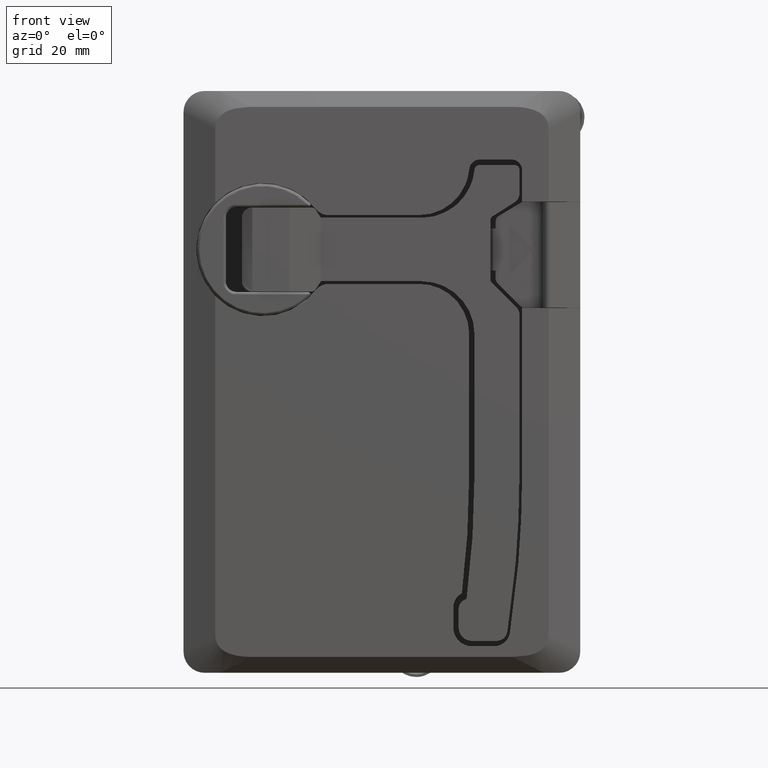
[diagram: clean part render]
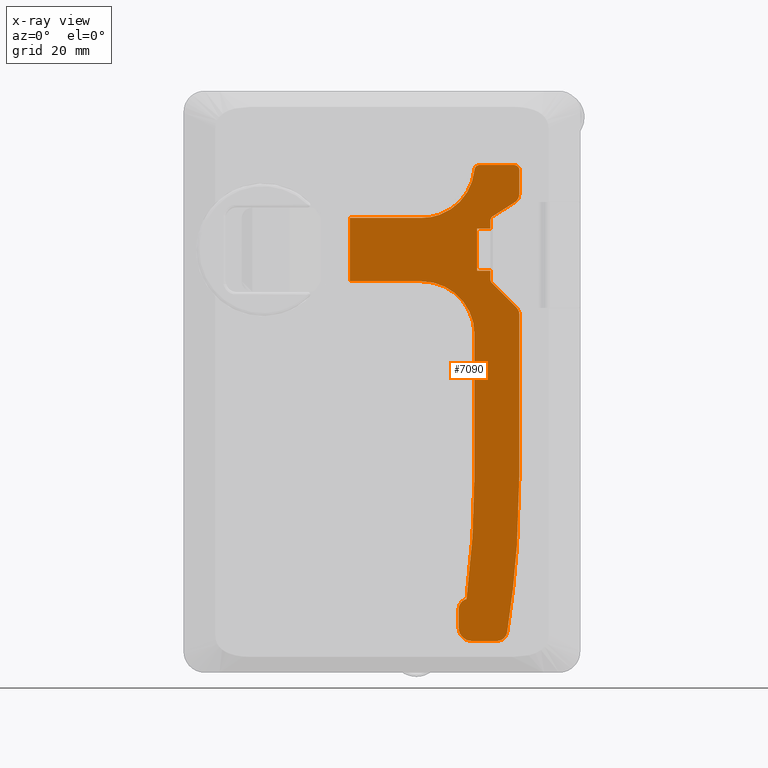
[diagram: x-ray — body ghosted, one internal face saturated and labeled with its STEP entity id]
A machine part, front view, then the same camera in x-ray: the body is ghosted and one INTERNAL B-rep face — a face not visible from any outside direction — is saturated and labeled: STEP entity #7090.
In plain terms, the highlighted face is a freeform B-spline surface patch.
Its self-contained STEP definition (entity closure, byte-faithful):
#6682=CARTESIAN_POINT('',(16.474475503427151,-20.300000000000001,6.0));
#6683=VERTEX_POINT('',#6682);
#6689=CARTESIAN_POINT('',(16.474475503427151,-20.300000000000001,-6.000000000000091));
#6690=VERTEX_POINT('',#6689);
#6691=CARTESIAN_POINT('',(16.474475503427151,-20.300000000000001,-6.000000000000091));
#6692=CARTESIAN_POINT('',(16.474475503427151,-20.300000000000001,6.0));
#6693=QUASI_UNIFORM_CURVE('',1,(#6691,#6692),.UNSPECIFIED.,.F.,.U.);
#6694=EDGE_CURVE('',#6690,#6683,#6693,.T.);
#6813=CARTESIAN_POINT('',(14.874828605444870,-20.300000000000001,20.495499825562540));
#6814=CARTESIAN_POINT('',(50.099093730503377,-20.300000000000001,20.495499825562540));
#6815=CARTESIAN_POINT('',(14.874828605444870,-20.300000000000001,-78.495502239550660));
#6816=CARTESIAN_POINT('',(50.099093730503377,-20.300000000000001,-78.495502239550660));
#6817=B_SPLINE_SURFACE_WITH_KNOTS('',1,1,((#6813,#6815),(#6814,#6816)),.UNSPECIFIED.,.F.,.F.,.U.,(2,2),(2,2),(0.0,35.224265125058508),(0.0,98.991002065113207),.UNSPECIFIED.);
#6818=CARTESIAN_POINT('',(29.999445687218898,-20.300000000000001,-6.000000000000091));
#6819=VERTEX_POINT('',#6818);
#6820=CARTESIAN_POINT('',(16.474475503427151,-20.300000000000001,-6.000000000000091));
#6821=CARTESIAN_POINT('',(29.999445687218898,-20.300000000000001,-6.000000000000091));
#6822=QUASI_UNIFORM_CURVE('',1,(#6820,#6821),.UNSPECIFIED.,.F.,.U.);
#6823=EDGE_CURVE('',#6690,#6819,#6822,.T.);
#6824=ORIENTED_EDGE('',*,*,#6823,.F.);
#6825=ORIENTED_EDGE('',*,*,#6694,.T.);
#6826=CARTESIAN_POINT('',(30.045445687218901,-20.300000000000001,6.0));
#6827=VERTEX_POINT('',#6826);
#6828=CARTESIAN_POINT('',(30.045445687218901,-20.300000000000001,6.0));
#6829=CARTESIAN_POINT('',(16.474475503427151,-20.300000000000001,6.0));
#6830=QUASI_UNIFORM_CURVE('',1,(#6828,#6829),.UNSPECIFIED.,.F.,.U.);
#6831=EDGE_CURVE('',#6827,#6683,#6830,.T.);
#6832=ORIENTED_EDGE('',*,*,#6831,.F.);
#6833=CARTESIAN_POINT('',(40.003811413995500,-20.300000000000001,15.090901939784350));
#6834=VERTEX_POINT('',#6833);
#6835=CARTESIAN_POINT('',(40.003811413995500,-20.300000000000001,15.090901939784350));
#6836=CARTESIAN_POINT('',(39.940850955409239,-20.300000000000050,14.400133551789290));
#6837=CARTESIAN_POINT('',(39.685356668506358,-20.299999999999969,13.107866533337130));
#6838=CARTESIAN_POINT('',(38.976354601004743,-20.299999999999940,11.390893175666321));
#6839=CARTESIAN_POINT('',(38.044818383489947,-20.300000000000090,9.921527945345135));
#6840=CARTESIAN_POINT('',(36.828950510150300,-20.300000000000079,8.569989673399126));
#6841=CARTESIAN_POINT('',(35.376463314314222,-20.299999999999699,7.471745291119419));
#6842=CARTESIAN_POINT('',(33.819404763769889,-20.300000000000470,6.695648092659938));
#6843=CARTESIAN_POINT('',(32.087719469903909,-20.299999999999368,6.147836744610570));
#6844=CARTESIAN_POINT('',(30.816159282459989,-20.300000000000679,5.999840178431913));
#6845=CARTESIAN_POINT('',(30.045445687218901,-20.300000000000001,6.0));
#6846=B_SPLINE_CURVE_WITH_KNOTS('',3,(#6835,#6836,#6837,#6838,#6839,#6840,#6841,#6842,#6843,#6844,#6845),.UNSPECIFIED.,.F.,.U.,(4,1,1,1,1,1,1,1,4),(0.000000084945810,2.080882526878451,3.930578073075521,5.549049342438421,7.283152143212323,9.363997517439493,10.982489680441960,12.485360844667190,14.797461801784261),.UNSPECIFIED.);
#6847=EDGE_CURVE('',#6834,#6827,#6846,.T.);
#6848=ORIENTED_EDGE('',*,*,#6847,.F.);
#6849=CARTESIAN_POINT('',(40.999445687218902,-20.300000000000001,16.0));
#6850=VERTEX_POINT('',#6849);
#6851=CARTESIAN_POINT('',(40.003811413995500,-20.300000000000001,15.090901939784350));
#6852=CARTESIAN_POINT('',(40.016259574316273,-20.299999999999990,15.229080027218620));
#6853=CARTESIAN_POINT('',(40.095398904515882,-20.300000000000001,15.484774694447101));
#6854=CARTESIAN_POINT('',(40.345456996957473,-20.300000000000011,15.786643894676340));
#6855=CARTESIAN_POINT('',(40.660406530153303,-20.300000000000040,15.962178842277419));
#6856=CARTESIAN_POINT('',(40.891559801206903,-20.299999999999908,16.000025694957230));
#6857=CARTESIAN_POINT('',(40.999445687218902,-20.300000000000001,16.0));
#6858=B_SPLINE_CURVE_WITH_KNOTS('',3,(#6851,#6852,#6853,#6854,#6855,#6856,#6857),.UNSPECIFIED.,.F.,.U.,(4,1,1,1,4),(0.000000167831845,0.416158015612892,0.786072412228748,1.155993689320681,1.479671515247322),.UNSPECIFIED.);
#6859=EDGE_CURVE('',#6834,#6850,#6858,.T.);
#6860=ORIENTED_EDGE('',*,*,#6859,.T.);
#6861=CARTESIAN_POINT('',(47.499445687218902,-20.300000000000001,16.0));
#6862=VERTEX_POINT('',#6861);
#6863=CARTESIAN_POINT('',(40.999445687218902,-20.300000000000001,16.0));
#6864=CARTESIAN_POINT('',(47.499445687218902,-20.300000000000001,16.0));
#6865=QUASI_UNIFORM_CURVE('',1,(#6863,#6864),.UNSPECIFIED.,.F.,.U.);
#6866=EDGE_CURVE('',#6850,#6862,#6865,.T.);
#6867=ORIENTED_EDGE('',*,*,#6866,.T.);
#6868=CARTESIAN_POINT('',(48.499445687218902,-20.300000000000001,15.0));
#6869=VERTEX_POINT('',#6868);
#6870=CARTESIAN_POINT('',(47.499445687218902,-20.300000000000001,16.0));
#6871=CARTESIAN_POINT('',(47.622173339651070,-20.300000000000001,16.000086484981981));
#6872=CARTESIAN_POINT('',(47.867546985035119,-20.300000000000011,15.954267744260260));
#6873=CARTESIAN_POINT('',(48.200605696860187,-20.300000000000018,15.749229550326421));
#6874=CARTESIAN_POINT('',(48.440511427748213,-20.299999999999969,15.417140759227470));
#6875=CARTESIAN_POINT('',(48.499607647492702,-20.300000000000029,15.139103799353039));
#6876=CARTESIAN_POINT('',(48.499445687218902,-20.300000000000001,15.0));
#6877=B_SPLINE_CURVE_WITH_KNOTS('',3,(#6870,#6871,#6872,#6873,#6874,#6875,#6876),.UNSPECIFIED.,.F.,.U.,(4,1,1,1,4),(0.000000316497834,0.368164299933769,0.736343058448094,1.153582013883674,1.570835744397974),.UNSPECIFIED.);
#6878=EDGE_CURVE('',#6862,#6869,#6877,.T.);
#6879=ORIENTED_EDGE('',*,*,#6878,.T.);
#6880=CARTESIAN_POINT('',(48.499445687218902,-20.300000000000001,10.598000000000001));
#6881=VERTEX_POINT('',#6880);
#6882=CARTESIAN_POINT('',(48.499445687218902,-20.300000000000001,10.598000000000001));
#6883=CARTESIAN_POINT('',(48.499445687218902,-20.300000000000001,15.0));
#6884=QUASI_UNIFORM_CURVE('',1,(#6882,#6883),.UNSPECIFIED.,.F.,.U.);
#6885=EDGE_CURVE('',#6881,#6869,#6884,.T.);
#6886=ORIENTED_EDGE('',*,*,#6885,.F.);
#6887=CARTESIAN_POINT('',(47.573445687218900,-20.300000000000001,8.910000000000000));
#6888=VERTEX_POINT('',#6887);
#6889=CARTESIAN_POINT('',(48.499445687218902,-20.300000000000001,10.598000000000001));
#6890=CARTESIAN_POINT('',(48.499742155790180,-20.300000000000029,10.367816474410050));
#6891=CARTESIAN_POINT('',(48.430359167084539,-20.299999999999990,9.970331652980441));
#6892=CARTESIAN_POINT('',(48.124560695510233,-20.300000000000018,9.368669930235646));
#6893=CARTESIAN_POINT('',(47.803135110626442,-20.299999999999990,9.055821386190116));
#6894=CARTESIAN_POINT('',(47.573445687218900,-20.300000000000001,8.910000000000000));
#6895=B_SPLINE_CURVE_WITH_KNOTS('',3,(#6889,#6890,#6891,#6892,#6893,#6894),.UNSPECIFIED.,.F.,.U.,(4,1,1,4),(0.000000042951592,0.690531124222121,1.192731495647483,2.008812958736733),.UNSPECIFIED.);
#6896=EDGE_CURVE('',#6881,#6888,#6895,.T.);
#6897=ORIENTED_EDGE('',*,*,#6896,.T.);
#6898=CARTESIAN_POINT('',(43.436406167468952,-20.300000000000001,6.277429972350809));
#6899=VERTEX_POINT('',#6898);
#6900=CARTESIAN_POINT('',(43.436406167468952,-20.300000000000001,6.277429972350809));
#6901=CARTESIAN_POINT('',(47.573445687218900,-20.300000000000001,8.910000000000000));
#6902=QUASI_UNIFORM_CURVE('',1,(#6900,#6901),.UNSPECIFIED.,.F.,.U.);
#6903=EDGE_CURVE('',#6899,#6888,#6902,.T.);
#6904=ORIENTED_EDGE('',*,*,#6903,.F.);
#6905=CARTESIAN_POINT('',(42.999445687218902,-20.300000000000001,5.451000000000001));
#6906=VERTEX_POINT('',#6905);
#6907=CARTESIAN_POINT('',(42.999445687218902,-20.300000000000001,5.451000000000001));
#6908=CARTESIAN_POINT('',(42.999293613265330,-20.299999999999990,5.582752960694497));
#6909=CARTESIAN_POINT('',(43.042136027741648,-20.299999999999990,5.795408702988346));
#6910=CARTESIAN_POINT('',(43.203542829827072,-20.300000000000018,6.079408585046377));
#6911=CARTESIAN_POINT('',(43.344241064143041,-20.299999999999969,6.214726926390009));
#6912=CARTESIAN_POINT('',(43.436406167468952,-20.300000000000001,6.277429972350809));
#6913=B_SPLINE_CURVE_WITH_KNOTS('',3,(#6907,#6908,#6909,#6910,#6911,#6912),.UNSPECIFIED.,.F.,.U.,(4,1,1,4),(0.000000127205032,0.395194459121797,0.638372463682935,0.972774661863710),.UNSPECIFIED.);
#6914=EDGE_CURVE('',#6906,#6899,#6913,.T.);
#6915=ORIENTED_EDGE('',*,*,#6914,.F.);
#6916=CARTESIAN_POINT('',(42.999445687218902,-20.300000000000001,4.0));
#6917=VERTEX_POINT('',#6916);
#6918=CARTESIAN_POINT('',(42.999445687218902,-20.300000000000001,4.0));
#6919=CARTESIAN_POINT('',(42.999445687218902,-20.300000000000001,5.451000000000001));
#6920=QUASI_UNIFORM_CURVE('',1,(#6918,#6919),.UNSPECIFIED.,.F.,.U.);
#6921=EDGE_CURVE('',#6917,#6906,#6920,.T.);
#6922=ORIENTED_EDGE('',*,*,#6921,.F.);
#6923=CARTESIAN_POINT('',(40.499445687218902,-20.300000000000001,4.0));
#6924=VERTEX_POINT('',#6923);
#6925=CARTESIAN_POINT('',(42.999445687218902,-20.300000000000001,4.0));
#6926=CARTESIAN_POINT('',(40.499445687218902,-20.300000000000001,4.0));
#6927=QUASI_UNIFORM_CURVE('',1,(#6925,#6926),.UNSPECIFIED.,.F.,.U.);
#6928=EDGE_CURVE('',#6917,#6924,#6927,.T.);
#6929=ORIENTED_EDGE('',*,*,#6928,.T.);
#6930=CARTESIAN_POINT('',(40.499445687218902,-20.300000000000001,-4.0));
#6931=VERTEX_POINT('',#6930);
#6932=CARTESIAN_POINT('',(40.499445687218902,-20.300000000000001,-4.0));
#6933=CARTESIAN_POINT('',(40.499445687218902,-20.300000000000001,4.0));
#6934=QUASI_UNIFORM_CURVE('',1,(#6932,#6933),.UNSPECIFIED.,.F.,.U.);
#6935=EDGE_CURVE('',#6931,#6924,#6934,.T.);
#6936=ORIENTED_EDGE('',*,*,#6935,.F.);
#6937=CARTESIAN_POINT('',(42.999445687218902,-20.300000000000001,-4.0));
#6938=VERTEX_POINT('',#6937);
#6939=CARTESIAN_POINT('',(42.999445687218902,-20.300000000000001,-4.0));
#6940=CARTESIAN_POINT('',(40.499445687218902,-20.300000000000001,-4.0));
#6941=QUASI_UNIFORM_CURVE('',1,(#6939,#6940),.UNSPECIFIED.,.F.,.U.);
#6942=EDGE_CURVE('',#6938,#6931,#6941,.T.);
#6943=ORIENTED_EDGE('',*,*,#6942,.F.);
#6944=CARTESIAN_POINT('',(42.999445687218902,-20.300000000000001,-5.586000000000071));
#6945=VERTEX_POINT('',#6944);
#6946=CARTESIAN_POINT('',(42.999445687218902,-20.300000000000001,-5.586000000000071));
#6947=CARTESIAN_POINT('',(42.999445687218902,-20.300000000000001,-4.0));
#6948=QUASI_UNIFORM_CURVE('',1,(#6946,#6947),.UNSPECIFIED.,.F.,.U.);
#6949=EDGE_CURVE('',#6945,#6938,#6948,.T.);
#6950=ORIENTED_EDGE('',*,*,#6949,.F.);
#6951=CARTESIAN_POINT('',(43.304733892946700,-20.300000000000001,-6.305288205727869));
#6952=VERTEX_POINT('',#6951);
#6953=CARTESIAN_POINT('',(43.304733892946700,-20.300000000000001,-6.305288205727869));
#6954=CARTESIAN_POINT('',(43.232552137522518,-20.300000000000001,-6.235593606926120));
#6955=CARTESIAN_POINT('',(43.068184001304580,-20.299999999999969,-6.020504521064067));
#6956=CARTESIAN_POINT('',(42.999092989167863,-20.300000000000050,-5.753327646773875));
#6957=CARTESIAN_POINT('',(42.999445687218902,-20.300000000000001,-5.586000000000071));
#6958=B_SPLINE_CURVE_WITH_KNOTS('',3,(#6953,#6954,#6955,#6956,#6957),.UNSPECIFIED.,.F.,.U.,(4,1,4),(0.000000078589080,0.301058255974722,0.802798231263379),.UNSPECIFIED.);
#6959=EDGE_CURVE('',#6952,#6945,#6958,.T.);
#6960=ORIENTED_EDGE('',*,*,#6959,.F.);
#6961=CARTESIAN_POINT('',(47.913445687218797,-20.300000000000001,-10.914000000000000));
#6962=VERTEX_POINT('',#6961);
#6963=CARTESIAN_POINT('',(47.913445687218797,-20.300000000000001,-10.914000000000000));
#6964=CARTESIAN_POINT('',(43.304733892946700,-20.300000000000001,-6.305288205727869));
#6965=QUASI_UNIFORM_CURVE('',1,(#6963,#6964),.UNSPECIFIED.,.F.,.U.);
#6966=EDGE_CURVE('',#6962,#6952,#6965,.T.);
#6967=ORIENTED_EDGE('',*,*,#6966,.F.);
#6968=CARTESIAN_POINT('',(48.499445687218902,-20.300000000000001,-12.329000000000001));
#6969=VERTEX_POINT('',#6968);
#6970=CARTESIAN_POINT('',(47.913445687218797,-20.300000000000001,-10.914000000000000));
#6971=CARTESIAN_POINT('',(48.087231465219773,-20.300000000000040,-11.087539863833809));
#6972=CARTESIAN_POINT('',(48.388358872003629,-20.299999999999901,-11.527056732258499));
#6973=CARTESIAN_POINT('',(48.499837039777603,-20.300000000000072,-12.050646694828719));
#6974=CARTESIAN_POINT('',(48.499445687218902,-20.300000000000001,-12.329000000000001));
#6975=B_SPLINE_CURVE_WITH_KNOTS('',3,(#6970,#6971,#6972,#6973,#6974),.UNSPECIFIED.,.F.,.U.,(4,1,4),(0.000000067502853,0.736742255322963,1.571679307223360),.UNSPECIFIED.);
#6976=EDGE_CURVE('',#6962,#6969,#6975,.T.);
#6977=ORIENTED_EDGE('',*,*,#6976,.T.);
#6978=CARTESIAN_POINT('',(48.499445687218902,-20.300000000000001,-42.488999999999997));
#6979=VERTEX_POINT('',#6978);
#6980=CARTESIAN_POINT('',(48.499445687218902,-20.300000000000001,-42.488999999999997));
#6981=CARTESIAN_POINT('',(48.499445687218902,-20.300000000000001,-12.329000000000001));
#6982=QUASI_UNIFORM_CURVE('',1,(#6980,#6981),.UNSPECIFIED.,.F.,.U.);
#6983=EDGE_CURVE('',#6979,#6969,#6982,.T.);
#6984=ORIENTED_EDGE('',*,*,#6983,.F.);
#6985=CARTESIAN_POINT('',(46.200219842411187,-20.300000000000001,-72.306607792207799));
#6986=VERTEX_POINT('',#6985);
#6987=CARTESIAN_POINT('',(48.499445687218902,-20.300000000000001,-42.488999999999997));
#6988=CARTESIAN_POINT('',(48.499445687218703,-20.299999999999997,-57.486450167164215));
#6989=CARTESIAN_POINT('',(46.200219842411052,-20.300000000000001,-72.306607792207771));
#6997=(BOUNDED_CURVE()B_SPLINE_CURVE(2,(#6987,#6988,#6989),.UNSPECIFIED.,.F.,.U.)CURVE()GEOMETRIC_REPRESENTATION_ITEM()QUASI_UNIFORM_CURVE()RATIONAL_B_SPLINE_CURVE((1.0,0.997040241832448,1.0))REPRESENTATION_ITEM(''));
#6998=EDGE_CURVE('',#6979,#6986,#6997,.T.);
#6999=ORIENTED_EDGE('',*,*,#6998,.T.);
#7000=CARTESIAN_POINT('',(44.223861660866802,-20.300000000000001,-74.0));
#7001=VERTEX_POINT('',#7000);
#7002=CARTESIAN_POINT('',(46.200219842411187,-20.300000000000001,-72.306607792207799));
#7003=CARTESIAN_POINT('',(46.161975755328761,-20.299999999999969,-72.554605741839225));
#7004=CARTESIAN_POINT('',(46.005400163146803,-20.300000000000100,-72.993185213728765));
#7005=CARTESIAN_POINT('',(45.561150954260881,-20.300000000000040,-73.536816685745976));
#7006=CARTESIAN_POINT('',(44.961695003538779,-20.299999999999692,-73.907195245408730));
#7007=CARTESIAN_POINT('',(44.474794223592873,-20.300000000000249,-74.000194985348074));
#7008=CARTESIAN_POINT('',(44.223861660866802,-20.300000000000001,-74.0));
#7009=B_SPLINE_CURVE_WITH_KNOTS('',3,(#7002,#7003,#7004,#7005,#7006,#7007,#7008),.UNSPECIFIED.,.F.,.U.,(4,1,1,1,4),(0.000000200400106,0.752738074586472,1.372671678502401,2.081090978580279,2.833828852765341),.UNSPECIFIED.);
#7010=EDGE_CURVE('',#6986,#7001,#7009,.T.);
#7011=ORIENTED_EDGE('',*,*,#7010,.T.);
#7012=CARTESIAN_POINT('',(39.499445687218902,-20.300000000000001,-74.0));
#7013=VERTEX_POINT('',#7012);
#7014=CARTESIAN_POINT('',(44.223861660866802,-20.300000000000001,-74.0));
#7015=CARTESIAN_POINT('',(39.499445687218902,-20.300000000000001,-74.0));
#7016=QUASI_UNIFORM_CURVE('',1,(#7014,#7015),.UNSPECIFIED.,.F.,.U.);
#7017=EDGE_CURVE('',#7001,#7013,#7016,.T.);
#7018=ORIENTED_EDGE('',*,*,#7017,.T.);
#7019=CARTESIAN_POINT('',(36.999445687218902,-20.300000000000001,-71.500000000000000));
#7020=VERTEX_POINT('',#7019);
#7021=CARTESIAN_POINT('',(39.499445687218902,-20.300000000000001,-74.0));
#7022=CARTESIAN_POINT('',(39.233540274199910,-20.299999999999930,-74.000147164294887));
#7023=CARTESIAN_POINT('',(38.722308874307053,-20.300000000000111,-73.917648026336465));
#7024=CARTESIAN_POINT('',(38.001927971334787,-20.299999999999951,-73.555241766785457));
#7025=CARTESIAN_POINT('',(37.473647446920992,-20.300000000000001,-73.026815511086909));
#7026=CARTESIAN_POINT('',(37.094798226467162,-20.300000000000029,-72.317953964009490));
#7027=CARTESIAN_POINT('',(36.999192963247253,-20.299999999999930,-71.806832132041222));
#7028=CARTESIAN_POINT('',(36.999445687218902,-20.300000000000001,-71.500000000000000));
#7029=B_SPLINE_CURVE_WITH_KNOTS('',3,(#7021,#7022,#7023,#7024,#7025,#7026,#7027,#7028),.UNSPECIFIED.,.F.,.U.,(4,1,1,1,1,4),(0.000000174689498,0.797689097250812,1.534021893883332,2.393066643531276,3.006681240645656,3.927089360845364),.UNSPECIFIED.);
#7030=EDGE_CURVE('',#7013,#7020,#7029,.T.);
#7031=ORIENTED_EDGE('',*,*,#7030,.T.);
#7032=CARTESIAN_POINT('',(36.999445687218902,-20.300000000000001,-68.0));
#7033=VERTEX_POINT('',#7032);
#7034=CARTESIAN_POINT('',(36.999445687218902,-20.300000000000001,-68.0));
#7035=CARTESIAN_POINT('',(36.999445687218902,-20.300000000000001,-71.500000000000000));
#7036=QUASI_UNIFORM_CURVE('',1,(#7034,#7035),.UNSPECIFIED.,.F.,.U.);
#7037=EDGE_CURVE('',#7033,#7020,#7036,.T.);
#7038=ORIENTED_EDGE('',*,*,#7037,.F.);
#7039=CARTESIAN_POINT('',(38.499363815582662,-20.300000000000001,-66.063529467907998));
#7040=VERTEX_POINT('',#7039);
#7041=CARTESIAN_POINT('',(36.999445687218902,-20.300000000000001,-68.0));
#7042=CARTESIAN_POINT('',(36.999368197861287,-20.299999999999990,-67.794055431307086));
#7043=CARTESIAN_POINT('',(37.069939753873527,-20.300000000000001,-67.340955985465769));
#7044=CARTESIAN_POINT('',(37.368023498769972,-20.299999999999990,-66.787710905257242));
#7045=CARTESIAN_POINT('',(37.855985117292938,-20.300000000000011,-66.316973785483100));
#7046=CARTESIAN_POINT('',(38.246671292207687,-20.299999999999990,-66.128509238096512));
#7047=CARTESIAN_POINT('',(38.499363815582662,-20.300000000000001,-66.063529467907998));
#7048=B_SPLINE_CURVE_WITH_KNOTS('',3,(#7041,#7042,#7043,#7044,#7045,#7046,#7047),.UNSPECIFIED.,.F.,.U.,(4,1,1,1,4),(0.000000183358672,0.617855775718227,1.359249272293985,1.853570372161347,2.636194167148955),.UNSPECIFIED.);
#7049=EDGE_CURVE('',#7033,#7040,#7048,.T.);
#7050=ORIENTED_EDGE('',*,*,#7049,.T.);
#7051=CARTESIAN_POINT('',(39.999445687218902,-20.300000000000001,-42.488999999999997));
#7052=VERTEX_POINT('',#7051);
#7053=CARTESIAN_POINT('',(39.999445687218902,-20.300000000000001,-42.488999999999997));
#7054=CARTESIAN_POINT('',(39.999445687219108,-20.299999999999997,-54.323990938302643));
#7055=CARTESIAN_POINT('',(38.499363815582861,-20.300000000000001,-66.063529467908040));
#7063=(BOUNDED_CURVE()B_SPLINE_CURVE(2,(#7053,#7054,#7055),.UNSPECIFIED.,.F.,.U.)CURVE()GEOMETRIC_REPRESENTATION_ITEM()QUASI_UNIFORM_CURVE()RATIONAL_B_SPLINE_CURVE((1.0,0.997981645382943,1.0))REPRESENTATION_ITEM(''));
#7064=EDGE_CURVE('',#7052,#7040,#7063,.T.);
#7065=ORIENTED_EDGE('',*,*,#7064,.F.);
#7066=CARTESIAN_POINT('',(39.999445687218902,-20.300000000000001,-16.0));
#7067=VERTEX_POINT('',#7066);
#7068=CARTESIAN_POINT('',(39.999445687218902,-20.300000000000001,-16.0));
#7069=CARTESIAN_POINT('',(39.999445687218902,-20.300000000000001,-42.488999999999997));
#7070=QUASI_UNIFORM_CURVE('',1,(#7068,#7069),.UNSPECIFIED.,.F.,.U.);
#7071=EDGE_CURVE('',#7067,#7052,#7070,.T.);
#7072=ORIENTED_EDGE('',*,*,#7071,.F.);
#7073=CARTESIAN_POINT('',(29.999445687218898,-20.300000000000001,-6.000000000000091));
#7074=CARTESIAN_POINT('',(30.899415901702380,-20.299999999999930,-5.999666821336808));
#7075=CARTESIAN_POINT('',(32.330950800819643,-20.300000000000040,-6.194647989566733));
#7076=CARTESIAN_POINT('',(33.988673602401391,-20.300000000000001,-6.799382475357561));
#7077=CARTESIAN_POINT('',(35.224706675521702,-20.300000000000040,-7.440679158130297));
#7078=CARTESIAN_POINT('',(36.370354308412381,-20.300000000000001,-8.237015851592457));
#7079=CARTESIAN_POINT('',(37.404448607388311,-20.299999999999979,-9.233772799729421));
#7080=CARTESIAN_POINT('',(38.318959112558282,-20.299999999999969,-10.390882664883650));
#7081=CARTESIAN_POINT('',(39.083935857654993,-20.300000000000072,-11.703354543671990));
#7082=CARTESIAN_POINT('',(39.799218494277078,-20.299999999999830,-13.627596608022120));
#7083=CARTESIAN_POINT('',(39.999776515940837,-20.300000000000139,-15.100029626938751));
#7084=CARTESIAN_POINT('',(39.999445687218902,-20.300000000000001,-16.0));
#7085=B_SPLINE_CURVE_WITH_KNOTS('',3,(#7073,#7074,#7075,#7076,#7077,#7078,#7079,#7080,#7081,#7082,#7083,#7084),.UNSPECIFIED.,.F.,.U.,(4,1,1,1,1,1,1,1,1,4),(0.000000081138285,2.699808551369031,4.295178155017384,5.276929981344384,6.872288767969922,8.467590751285048,9.572093848578781,11.290163251364669,13.008253995157750,15.708061828752889),.UNSPECIFIED.);
#7086=EDGE_CURVE('',#6819,#7067,#7085,.T.);
#7087=ORIENTED_EDGE('',*,*,#7086,.F.);
#7088=EDGE_LOOP('',(#6824,#6825,#6832,#6848,#6860,#6867,#6879,#6886,#6897,#6904,#6915,#6922,#6929,#6936,#6943,#6950,#6960,#6967,#6977,#6984,#6999,#7011,#7018,#7031,#7038,#7050,#7065,#7072,#7087));
#7089=FACE_OUTER_BOUND('',#7088,.T.);
#7090=ADVANCED_FACE('',(#7089),#6817,.T.);